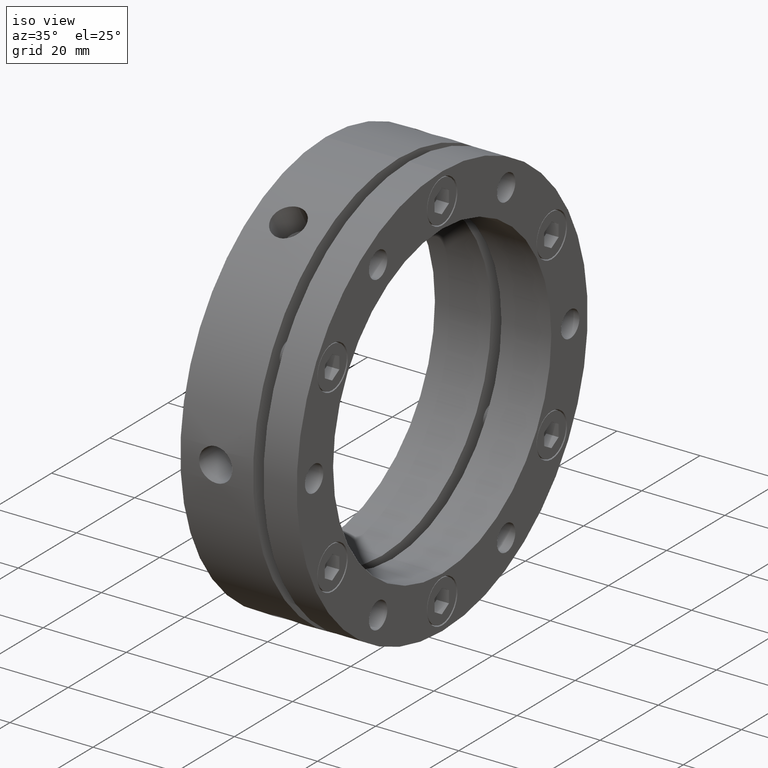
[diagram: clean part render]
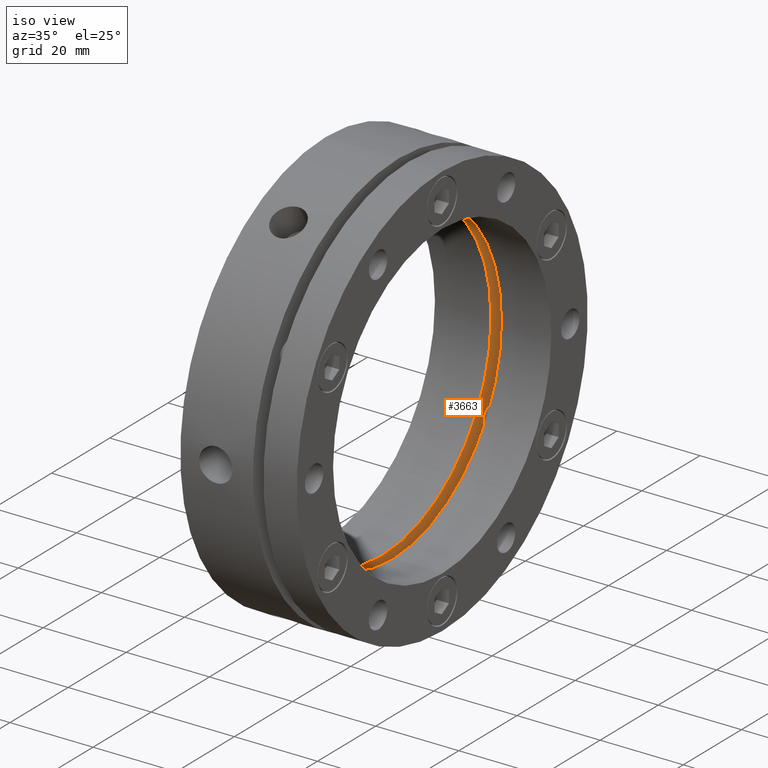
[diagram: same view with one face highlighted and labeled with its STEP entity id]
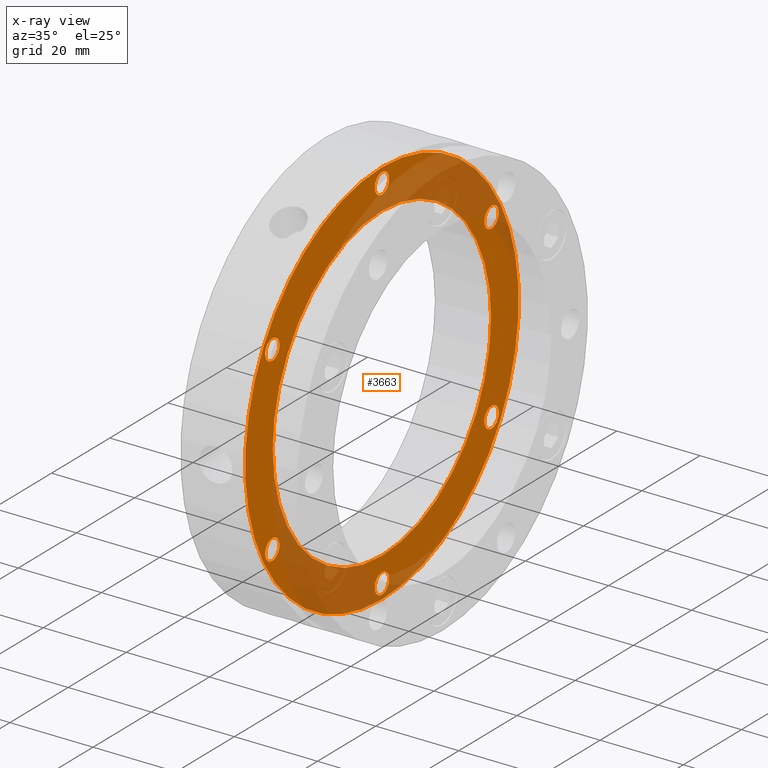
[diagram: x-ray of the same camera — body ghosted, the highlighted face saturated]
A machine part, iso view. The second image highlights one B-rep face of the part: STEP entity #3663.
The next image is the same camera in x-ray: the body ghosted, the highlighted face saturated — about 34% of this face is hidden behind the body in this view.
In plain terms, the highlighted planar face has unit normal (-1, 0, 0).
Its self-contained STEP definition (entity closure, byte-faithful):
#51 = EDGE_LOOP ( 'NONE', ( #2615, #2616 ) ) ;
#55 = EDGE_LOOP ( 'NONE', ( #2621, #2622 ) ) ;
#56 = EDGE_LOOP ( 'NONE', ( #2613, #2614 ) ) ;
#57 = EDGE_LOOP ( 'NONE', ( #2617, #2618 ) ) ;
#58 = EDGE_LOOP ( 'NONE', ( #2611, #2612 ) ) ;
#59 = EDGE_LOOP ( 'NONE', ( #2623, #2624 ) ) ;
#60 = EDGE_LOOP ( 'NONE', ( #2619, #2620 ) ) ;
#61 = EDGE_LOOP ( 'NONE', ( #2625, #2626 ) ) ;
#172 = CIRCLE ( 'NONE', #4665, 2.458499999999999000 ) ;
#177 = CIRCLE ( 'NONE', #4666, 2.458500000000002600 ) ;
#180 = CIRCLE ( 'NONE', #4649, 2.458499999999999000 ) ;
#187 = CIRCLE ( 'NONE', #4664, 37.50000000000000000 ) ;
#250 = CIRCLE ( 'NONE', #2465, 2.458499999999999000 ) ;
#255 = CIRCLE ( 'NONE', #2472, 2.458500000000002600 ) ;
#257 = CIRCLE ( 'NONE', #2349, 2.458500000000002600 ) ;
#278 = CIRCLE ( 'NONE', #3169, 47.00000000000000000 ) ;
#372 = CIRCLE ( 'NONE', #3197, 2.458500000000002600 ) ;
#380 = CIRCLE ( 'NONE', #3200, 2.458499999999999000 ) ;
#388 = CIRCLE ( 'NONE', #3202, 2.458500000000002600 ) ;
#401 = CIRCLE ( 'NONE', #3207, 2.458499999999999000 ) ;
#412 = CIRCLE ( 'NONE', #3210, 2.458499999999999000 ) ;
#414 = CIRCLE ( 'NONE', #3212, 2.458500000000002600 ) ;
#423 = CIRCLE ( 'NONE', #3214, 37.50000000000000000 ) ;
#547 = FACE_BOUND ( 'NONE', #58, .T. ) ;
#548 = FACE_BOUND ( 'NONE', #51, .T. ) ;
#549 = FACE_BOUND ( 'NONE', #60, .T. ) ;
#550 = FACE_BOUND ( 'NONE', #57, .T. ) ;
#551 = FACE_BOUND ( 'NONE', #56, .T. ) ;
#552 = FACE_BOUND ( 'NONE', #55, .T. ) ;
#553 = FACE_BOUND ( 'NONE', #59, .T. ) ;
#554 = FACE_OUTER_BOUND ( 'NONE', #61, .T. ) ;
#858 = CARTESIAN_POINT ( 'NONE',  ( 13.50000000000001100, 37.67210506462313200, 21.74999999999998600 ) ) ;
#859 = DIRECTION ( 'NONE',  ( -1.000000000000000000, 0.0000000000000000000, 0.0000000000000000000 ) ) ;
#860 = DIRECTION ( 'NONE',  ( 0.0000000000000000000, 0.0000000000000000000, 1.000000000000000000 ) ) ;
#873 = CARTESIAN_POINT ( 'NONE',  ( 13.50000000000001100, 37.67210506462309600, -21.75000000000003600 ) ) ;
#874 = DIRECTION ( 'NONE',  ( -1.000000000000000000, 0.0000000000000000000, 0.0000000000000000000 ) ) ;
#875 = DIRECTION ( 'NONE',  ( 0.0000000000000000000, 0.0000000000000000000, 1.000000000000000000 ) ) ;
#886 = CARTESIAN_POINT ( 'NONE',  ( 13.50000000000001100, -6.661337999999999900E-015, -43.50000000000002800 ) ) ;
#887 = DIRECTION ( 'NONE',  ( -1.000000000000000000, 0.0000000000000000000, 0.0000000000000000000 ) ) ;
#888 = DIRECTION ( 'NONE',  ( 0.0000000000000000000, 0.0000000000000000000, 1.000000000000000000 ) ) ;
#910 = CARTESIAN_POINT ( 'NONE',  ( 13.50000000000001100, -37.67210506462311800, -21.75000000000001100 ) ) ;
#911 = DIRECTION ( 'NONE',  ( -1.000000000000000000, 0.0000000000000000000, 0.0000000000000000000 ) ) ;
#912 = DIRECTION ( 'NONE',  ( 0.0000000000000000000, 0.0000000000000000000, 1.000000000000000000 ) ) ;
#958 = CARTESIAN_POINT ( 'NONE',  ( 13.50000000000001100, -37.67210506462311100, 21.75000000000002100 ) ) ;
#959 = DIRECTION ( 'NONE',  ( -1.000000000000000000, 0.0000000000000000000, 0.0000000000000000000 ) ) ;
#960 = DIRECTION ( 'NONE',  ( 0.0000000000000000000, 0.0000000000000000000, 1.000000000000000000 ) ) ;
#968 = CARTESIAN_POINT ( 'NONE',  ( 13.50000000000001100, 0.0000000000000000000, 43.50000000000002800 ) ) ;
#969 = DIRECTION ( 'NONE',  ( -1.000000000000000000, 0.0000000000000000000, 0.0000000000000000000 ) ) ;
#970 = DIRECTION ( 'NONE',  ( 0.0000000000000000000, 0.0000000000000000000, 1.000000000000000000 ) ) ;
#978 = CARTESIAN_POINT ( 'NONE',  ( 13.50000000000001100, 0.0000000000000000000, 0.0000000000000000000 ) ) ;
#979 = DIRECTION ( 'NONE',  ( -1.000000000000000000, -0.0000000000000000000, -0.0000000000000000000 ) ) ;
#980 = DIRECTION ( 'NONE',  ( 0.0000000000000000000, 0.0000000000000000000, -1.000000000000000000 ) ) ;
#1159 = DIRECTION ( 'NONE',  ( -1.000000000000000000, 0.0000000000000000000, 0.0000000000000000000 ) ) ;
#1161 = CARTESIAN_POINT ( 'NONE',  ( 13.50000000000001100, 23.50000000000000000, 0.0000000000000000000 ) ) ;
#1163 = PLANE ( 'NONE',  #3256 ) ;
#1165 = DIRECTION ( 'NONE',  ( 0.0000000000000000000, 0.0000000000000000000, 1.000000000000000000 ) ) ;
#1541 = CARTESIAN_POINT ( 'NONE',  ( 13.50000000000000400, 0.0000000000000000000, 0.0000000000000000000 ) ) ;
#1542 = DIRECTION ( 'NONE',  ( -1.000000000000000000, 0.0000000000000000000, 0.0000000000000000000 ) ) ;
#1543 = DIRECTION ( 'NONE',  ( 0.0000000000000000000, 0.0000000000000000000, 1.000000000000000000 ) ) ;
#1923 = CIRCLE ( 'NONE', #3368, 47.00000000000000000 ) ;
#2340 = EDGE_CURVE ( 'NONE', #2824, #2821, #172, .T. ) ;
#2345 = EDGE_CURVE ( 'NONE', #2832, #2829, #177, .T. ) ;
#2349 = AXIS2_PLACEMENT_3D ( 'NONE', #4369, #4370, #4371 ) ;
#2465 = AXIS2_PLACEMENT_3D ( 'NONE', #4346, #4347, #4348 ) ;
#2472 = AXIS2_PLACEMENT_3D ( 'NONE', #4362, #4363, #4364 ) ;
#2611 = ORIENTED_EDGE ( 'NONE', *, *, #3610, .T. ) ;
#2612 = ORIENTED_EDGE ( 'NONE', *, *, #3059, .T. ) ;
#2613 = ORIENTED_EDGE ( 'NONE', *, *, #3121, .T. ) ;
#2614 = ORIENTED_EDGE ( 'NONE', *, *, #3606, .T. ) ;
#2615 = ORIENTED_EDGE ( 'NONE', *, *, #2340, .T. ) ;
#2616 = ORIENTED_EDGE ( 'NONE', *, *, #3601, .T. ) ;
#2617 = ORIENTED_EDGE ( 'NONE', *, *, #3114, .T. ) ;
#2618 = ORIENTED_EDGE ( 'NONE', *, *, #3595, .T. ) ;
#2619 = ORIENTED_EDGE ( 'NONE', *, *, #2345, .T. ) ;
#2620 = ORIENTED_EDGE ( 'NONE', *, *, #3586, .T. ) ;
#2621 = ORIENTED_EDGE ( 'NONE', *, *, #3060, .T. ) ;
#2622 = ORIENTED_EDGE ( 'NONE', *, *, #3580, .T. ) ;
#2623 = ORIENTED_EDGE ( 'NONE', *, *, #3119, .T. ) ;
#2624 = ORIENTED_EDGE ( 'NONE', *, *, #3574, .T. ) ;
#2625 = ORIENTED_EDGE ( 'NONE', *, *, #3137, .F. ) ;
#2626 = ORIENTED_EDGE ( 'NONE', *, *, #4739, .F. ) ;
#2814 = VERTEX_POINT ( 'NONE', #3955 ) ;
#2818 = VERTEX_POINT ( 'NONE', #3959 ) ;
#2819 = VERTEX_POINT ( 'NONE', #3960 ) ;
#2820 = VERTEX_POINT ( 'NONE', #3961 ) ;
#2821 = VERTEX_POINT ( 'NONE', #3962 ) ;
#2824 = VERTEX_POINT ( 'NONE', #3965 ) ;
#2825 = VERTEX_POINT ( 'NONE', #3966 ) ;
#2828 = VERTEX_POINT ( 'NONE', #3969 ) ;
#2829 = VERTEX_POINT ( 'NONE', #3970 ) ;
#2832 = VERTEX_POINT ( 'NONE', #3973 ) ;
#2833 = VERTEX_POINT ( 'NONE', #3974 ) ;
#2836 = VERTEX_POINT ( 'NONE', #3977 ) ;
#2837 = VERTEX_POINT ( 'NONE', #3978 ) ;
#2840 = VERTEX_POINT ( 'NONE', #3981 ) ;
#2881 = VERTEX_POINT ( 'NONE', #4022 ) ;
#2882 = VERTEX_POINT ( 'NONE', #4023 ) ;
#3059 = EDGE_CURVE ( 'NONE', #2819, #2818, #187, .T. ) ;
#3060 = EDGE_CURVE ( 'NONE', #2836, #2833, #180, .T. ) ;
#3114 = EDGE_CURVE ( 'NONE', #2828, #2825, #250, .T. ) ;
#3119 = EDGE_CURVE ( 'NONE', #2840, #2837, #255, .T. ) ;
#3121 = EDGE_CURVE ( 'NONE', #2820, #2814, #257, .T. ) ;
#3137 = EDGE_CURVE ( 'NONE', #2882, #2881, #278, .T. ) ;
#3169 = AXIS2_PLACEMENT_3D ( 'NONE', #4412, #4413, #4414 ) ;
#3197 = AXIS2_PLACEMENT_3D ( 'NONE', #858, #859, #860 ) ;
#3200 = AXIS2_PLACEMENT_3D ( 'NONE', #873, #874, #875 ) ;
#3202 = AXIS2_PLACEMENT_3D ( 'NONE', #886, #887, #888 ) ;
#3207 = AXIS2_PLACEMENT_3D ( 'NONE', #910, #911, #912 ) ;
#3210 = AXIS2_PLACEMENT_3D ( 'NONE', #958, #959, #960 ) ;
#3212 = AXIS2_PLACEMENT_3D ( 'NONE', #968, #969, #970 ) ;
#3214 = AXIS2_PLACEMENT_3D ( 'NONE', #978, #979, #980 ) ;
#3256 = AXIS2_PLACEMENT_3D ( 'NONE', #1161, #1159, #1165 ) ;
#3368 = AXIS2_PLACEMENT_3D ( 'NONE', #1541, #1542, #1543 ) ;
#3574 = EDGE_CURVE ( 'NONE', #2837, #2840, #372, .T. ) ;
#3580 = EDGE_CURVE ( 'NONE', #2833, #2836, #380, .T. ) ;
#3586 = EDGE_CURVE ( 'NONE', #2829, #2832, #388, .T. ) ;
#3595 = EDGE_CURVE ( 'NONE', #2825, #2828, #401, .T. ) ;
#3601 = EDGE_CURVE ( 'NONE', #2821, #2824, #412, .T. ) ;
#3606 = EDGE_CURVE ( 'NONE', #2814, #2820, #414, .T. ) ;
#3610 = EDGE_CURVE ( 'NONE', #2818, #2819, #423, .T. ) ;
#3663 = ADVANCED_FACE ( 'NONE', ( #547, #551, #548, #550, #549, #552, #553, #554 ), #1163, .F. ) ;
#3893 = CARTESIAN_POINT ( 'NONE',  ( 13.50000000000001100, -37.67210506462311100, 21.75000000000002100 ) ) ;
#3894 = DIRECTION ( 'NONE',  ( -1.000000000000000000, 0.0000000000000000000, 0.0000000000000000000 ) ) ;
#3895 = DIRECTION ( 'NONE',  ( 0.0000000000000000000, 0.0000000000000000000, 1.000000000000000000 ) ) ;
#3910 = CARTESIAN_POINT ( 'NONE',  ( 13.50000000000001100, -6.661337999999999900E-015, -43.50000000000002800 ) ) ;
#3911 = DIRECTION ( 'NONE',  ( -1.000000000000000000, 0.0000000000000000000, 0.0000000000000000000 ) ) ;
#3912 = DIRECTION ( 'NONE',  ( 0.0000000000000000000, 0.0000000000000000000, 1.000000000000000000 ) ) ;
#3955 = CARTESIAN_POINT ( 'NONE',  ( 13.50000000000001100, 3.010794155703764200E-016, 41.04150000000002800 ) ) ;
#3959 = CARTESIAN_POINT ( 'NONE',  ( 13.50000000000001100, 0.0000000000000000000, -37.50000000000000000 ) ) ;
#3960 = CARTESIAN_POINT ( 'NONE',  ( 13.50000000000001100, 4.592425496802574400E-015, 37.50000000000000000 ) ) ;
#3961 = CARTESIAN_POINT ( 'NONE',  ( 13.50000000000001100, 0.0000000000000000000, 45.95850000000003600 ) ) ;
#3962 = CARTESIAN_POINT ( 'NONE',  ( 13.50000000000001100, -37.67210506462311100, 19.29150000000002400 ) ) ;
#3965 = CARTESIAN_POINT ( 'NONE',  ( 13.50000000000001100, -37.67210506462311100, 24.20850000000002200 ) ) ;
#3966 = CARTESIAN_POINT ( 'NONE',  ( 13.50000000000001100, -37.67210506462311800, -24.20850000000000800 ) ) ;
#3969 = CARTESIAN_POINT ( 'NONE',  ( 13.50000000000001100, -37.67210506462311800, -19.29150000000001000 ) ) ;
#3970 = CARTESIAN_POINT ( 'NONE',  ( 13.50000000000001100, -6.360258584429623600E-015, -45.95850000000003600 ) ) ;
#3973 = CARTESIAN_POINT ( 'NONE',  ( 13.50000000000001100, -6.661337999999999900E-015, -41.04150000000002800 ) ) ;
#3974 = CARTESIAN_POINT ( 'NONE',  ( 13.50000000000001100, 37.67210506462309600, -24.20850000000003600 ) ) ;
#3977 = CARTESIAN_POINT ( 'NONE',  ( 13.50000000000001100, 37.67210506462309600, -19.29150000000003800 ) ) ;
#3978 = CARTESIAN_POINT ( 'NONE',  ( 13.50000000000001100, 37.67210506462313200, 19.29149999999998100 ) ) ;
#3981 = CARTESIAN_POINT ( 'NONE',  ( 13.50000000000001100, 37.67210506462313200, 24.20849999999998700 ) ) ;
#4022 = CARTESIAN_POINT ( 'NONE',  ( 13.50000000000000400, 5.755839955992560600E-015, -47.00000000000000000 ) ) ;
#4023 = CARTESIAN_POINT ( 'NONE',  ( 13.50000000000000400, 0.0000000000000000000, 47.00000000000000000 ) ) ;
#4108 = CARTESIAN_POINT ( 'NONE',  ( 13.50000000000001100, 0.0000000000000000000, 0.0000000000000000000 ) ) ;
#4109 = DIRECTION ( 'NONE',  ( -1.000000000000000000, -0.0000000000000000000, -0.0000000000000000000 ) ) ;
#4110 = DIRECTION ( 'NONE',  ( 0.0000000000000000000, 0.0000000000000000000, -1.000000000000000000 ) ) ;
#4112 = CARTESIAN_POINT ( 'NONE',  ( 13.50000000000001100, 37.67210506462309600, -21.75000000000003600 ) ) ;
#4113 = DIRECTION ( 'NONE',  ( -1.000000000000000000, 0.0000000000000000000, 0.0000000000000000000 ) ) ;
#4114 = DIRECTION ( 'NONE',  ( 0.0000000000000000000, 0.0000000000000000000, 1.000000000000000000 ) ) ;
#4346 = CARTESIAN_POINT ( 'NONE',  ( 13.50000000000001100, -37.67210506462311800, -21.75000000000001100 ) ) ;
#4347 = DIRECTION ( 'NONE',  ( -1.000000000000000000, 0.0000000000000000000, 0.0000000000000000000 ) ) ;
#4348 = DIRECTION ( 'NONE',  ( 0.0000000000000000000, 0.0000000000000000000, 1.000000000000000000 ) ) ;
#4362 = CARTESIAN_POINT ( 'NONE',  ( 13.50000000000001100, 37.67210506462313200, 21.74999999999998600 ) ) ;
#4363 = DIRECTION ( 'NONE',  ( -1.000000000000000000, 0.0000000000000000000, 0.0000000000000000000 ) ) ;
#4364 = DIRECTION ( 'NONE',  ( 0.0000000000000000000, 0.0000000000000000000, 1.000000000000000000 ) ) ;
#4369 = CARTESIAN_POINT ( 'NONE',  ( 13.50000000000001100, 0.0000000000000000000, 43.50000000000002800 ) ) ;
#4370 = DIRECTION ( 'NONE',  ( -1.000000000000000000, 0.0000000000000000000, 0.0000000000000000000 ) ) ;
#4371 = DIRECTION ( 'NONE',  ( 0.0000000000000000000, 0.0000000000000000000, 1.000000000000000000 ) ) ;
#4412 = CARTESIAN_POINT ( 'NONE',  ( 13.50000000000000400, 0.0000000000000000000, 0.0000000000000000000 ) ) ;
#4413 = DIRECTION ( 'NONE',  ( -1.000000000000000000, 0.0000000000000000000, 0.0000000000000000000 ) ) ;
#4414 = DIRECTION ( 'NONE',  ( 0.0000000000000000000, 0.0000000000000000000, 1.000000000000000000 ) ) ;
#4649 = AXIS2_PLACEMENT_3D ( 'NONE', #4112, #4113, #4114 ) ;
#4664 = AXIS2_PLACEMENT_3D ( 'NONE', #4108, #4109, #4110 ) ;
#4665 = AXIS2_PLACEMENT_3D ( 'NONE', #3893, #3894, #3895 ) ;
#4666 = AXIS2_PLACEMENT_3D ( 'NONE', #3910, #3911, #3912 ) ;
#4739 = EDGE_CURVE ( 'NONE', #2881, #2882, #1923, .T. ) ;